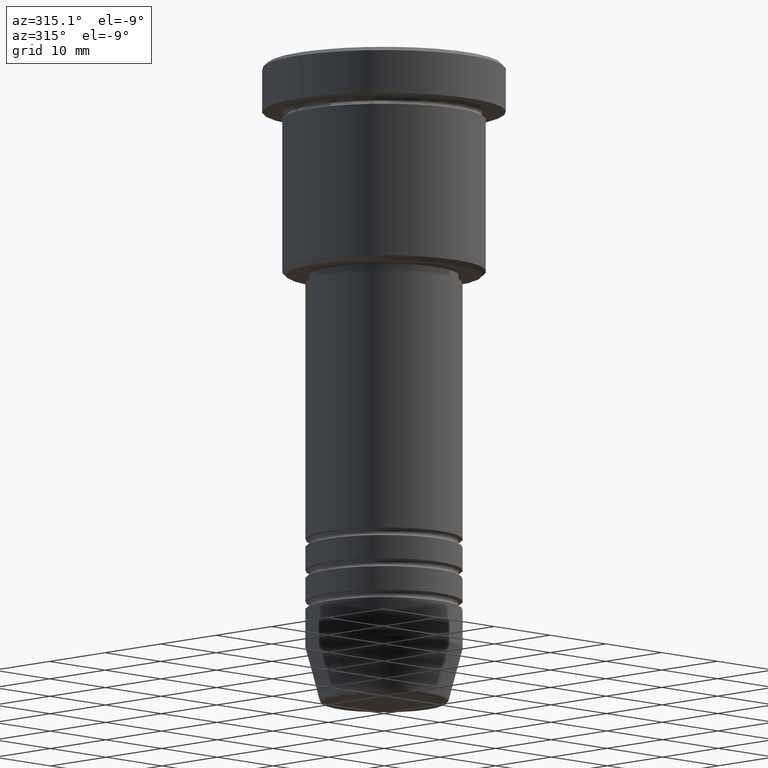
[diagram: clean part render]
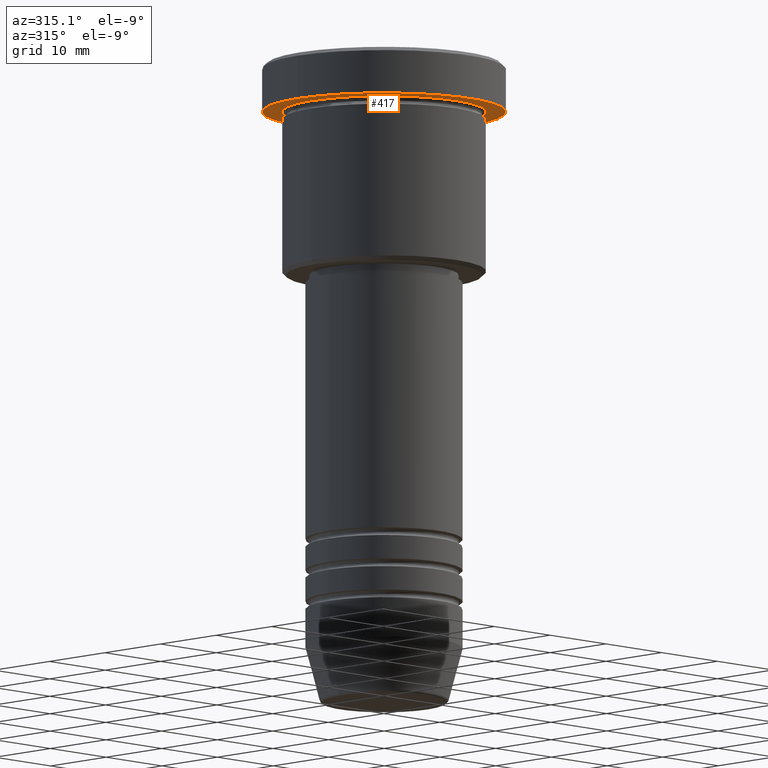
[diagram: same view with one face highlighted and labeled with its STEP entity id]
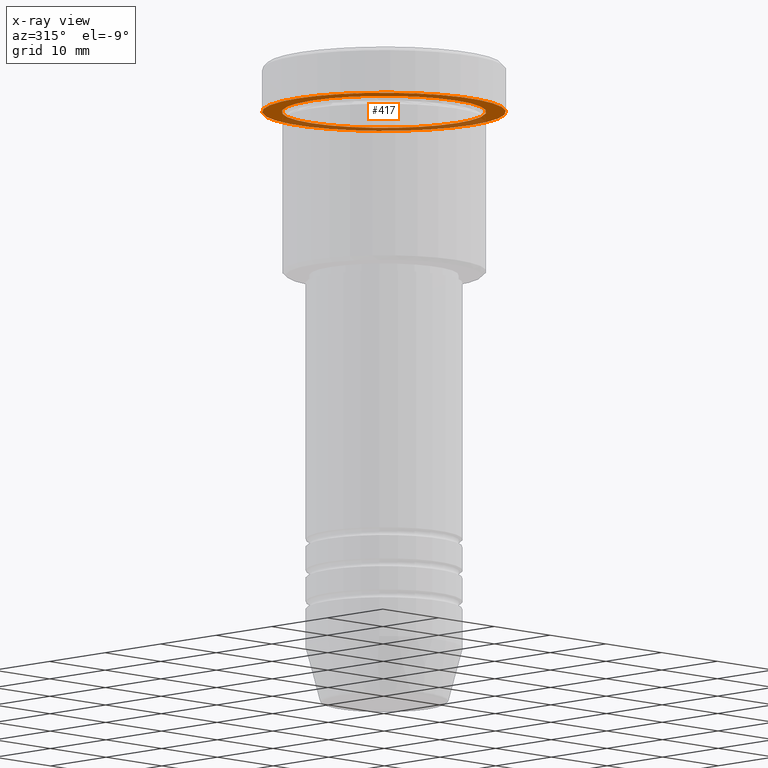
[diagram: x-ray of the same camera — body ghosted, the highlighted face saturated]
A machine part, auxiliary view. The second image highlights one B-rep face of the part: STEP entity #417.
The next image is the same camera in x-ray: the body ghosted, the highlighted face saturated — about 35% of this face is hidden behind the body in this view.
In plain terms, the highlighted planar face has unit normal (0, 0, -1).
Its self-contained STEP definition (entity closure, byte-faithful):
#19 = AXIS2_PLACEMENT_3D ( 'NONE', #134, #1141, #51 ) ;
#51 = DIRECTION ( 'NONE',  ( -1.000000000000000000, 0.000000000000000000, 0.000000000000000000 ) ) ;
#59 = DIRECTION ( 'NONE',  ( -0.000000000000000000, -0.000000000000000000, 1.000000000000000000 ) ) ;
#62 = EDGE_LOOP ( 'NONE', ( #563, #1128 ) ) ;
#69 = AXIS2_PLACEMENT_3D ( 'NONE', #230, #601, #777 ) ;
#79 = CARTESIAN_POINT ( 'NONE',  ( 0.000000000000000000, 0.000000000000000000, -5.999999999999995559 ) ) ;
#89 = AXIS2_PLACEMENT_3D ( 'NONE', #79, #971, #350 ) ;
#124 = FACE_OUTER_BOUND ( 'NONE', #229, .T. ) ;
#134 = CARTESIAN_POINT ( 'NONE',  ( 0.000000000000000000, 0.000000000000000000, -5.999999999999995559 ) ) ;
#135 = VERTEX_POINT ( 'NONE', #355 ) ;
#229 = EDGE_LOOP ( 'NONE', ( #583, #1090 ) ) ;
#230 = CARTESIAN_POINT ( 'NONE',  ( 0.000000000000000000, 15.50000000000000000, -5.999999999999995559 ) ) ;
#234 = FACE_BOUND ( 'NONE', #62, .T. ) ;
#320 = CARTESIAN_POINT ( 'NONE',  ( 0.000000000000000000, 0.000000000000000000, -5.999999999999995559 ) ) ;
#350 = DIRECTION ( 'NONE',  ( -1.000000000000000000, 0.000000000000000000, 0.000000000000000000 ) ) ;
#355 = CARTESIAN_POINT ( 'NONE',  ( 15.50000000000000000, 0.000000000000000000, -5.999999999999995559 ) ) ;
#406 = EDGE_CURVE ( 'NONE', #135, #802, #818, .T. ) ;
#417 = ADVANCED_FACE ( 'NONE', ( #234, #124 ), #1045, .T. ) ;
#426 = DIRECTION ( 'NONE',  ( 1.000000000000000000, 0.000000000000000000, 0.000000000000000000 ) ) ;
#448 = CIRCLE ( 'NONE', #485, 15.50000000000000000 ) ;
#469 = EDGE_CURVE ( 'NONE', #802, #135, #448, .T. ) ;
#470 = AXIS2_PLACEMENT_3D ( 'NONE', #320, #941, #426 ) ;
#485 = AXIS2_PLACEMENT_3D ( 'NONE', #875, #59, #1149 ) ;
#519 = EDGE_CURVE ( 'NONE', #1034, #821, #1061, .T. ) ;
#563 = ORIENTED_EDGE ( 'NONE', *, *, #785, .T. ) ;
#583 = ORIENTED_EDGE ( 'NONE', *, *, #406, .F. ) ;
#601 = DIRECTION ( 'NONE',  ( 0.000000000000000000, 0.000000000000000000, -1.000000000000000000 ) ) ;
#777 = DIRECTION ( 'NONE',  ( -1.000000000000000000, 0.000000000000000000, -0.000000000000000000 ) ) ;
#785 = EDGE_CURVE ( 'NONE', #821, #1034, #946, .T. ) ;
#802 = VERTEX_POINT ( 'NONE', #1052 ) ;
#818 = CIRCLE ( 'NONE', #470, 15.50000000000000000 ) ;
#821 = VERTEX_POINT ( 'NONE', #1077 ) ;
#875 = CARTESIAN_POINT ( 'NONE',  ( 0.000000000000000000, 0.000000000000000000, -5.999999999999995559 ) ) ;
#941 = DIRECTION ( 'NONE',  ( -0.000000000000000000, -0.000000000000000000, 1.000000000000000000 ) ) ;
#946 = CIRCLE ( 'NONE', #19, 13.00000000000000000 ) ;
#971 = DIRECTION ( 'NONE',  ( -0.000000000000000000, -0.000000000000000000, 1.000000000000000000 ) ) ;
#1034 = VERTEX_POINT ( 'NONE', #1111 ) ;
#1045 = PLANE ( 'NONE',  #69 ) ;
#1052 = CARTESIAN_POINT ( 'NONE',  ( -15.50000000000000000, 1.898202538678397557E-15, -5.999999999999995559 ) ) ;
#1061 = CIRCLE ( 'NONE', #89, 13.00000000000000000 ) ;
#1077 = CARTESIAN_POINT ( 'NONE',  ( -13.00000000000000000, 0.000000000000000000, -5.999999999999994671 ) ) ;
#1090 = ORIENTED_EDGE ( 'NONE', *, *, #469, .F. ) ;
#1111 = CARTESIAN_POINT ( 'NONE',  ( 13.00000000000000000, 1.592040838891559095E-15, -5.999999999999994671 ) ) ;
#1128 = ORIENTED_EDGE ( 'NONE', *, *, #519, .T. ) ;
#1141 = DIRECTION ( 'NONE',  ( -0.000000000000000000, -0.000000000000000000, 1.000000000000000000 ) ) ;
#1149 = DIRECTION ( 'NONE',  ( 1.000000000000000000, 0.000000000000000000, 0.000000000000000000 ) ) ;